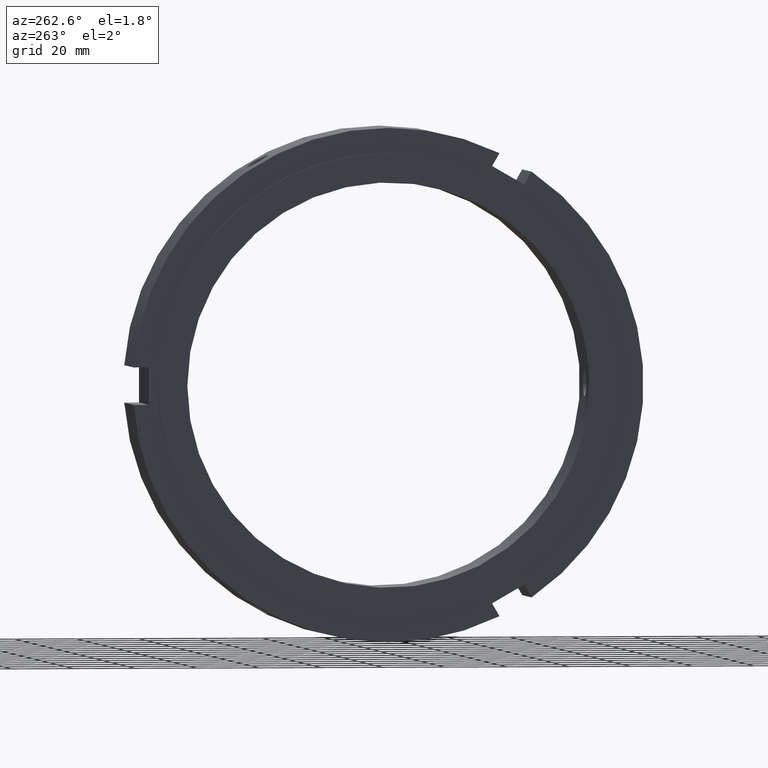
[diagram: clean part render]
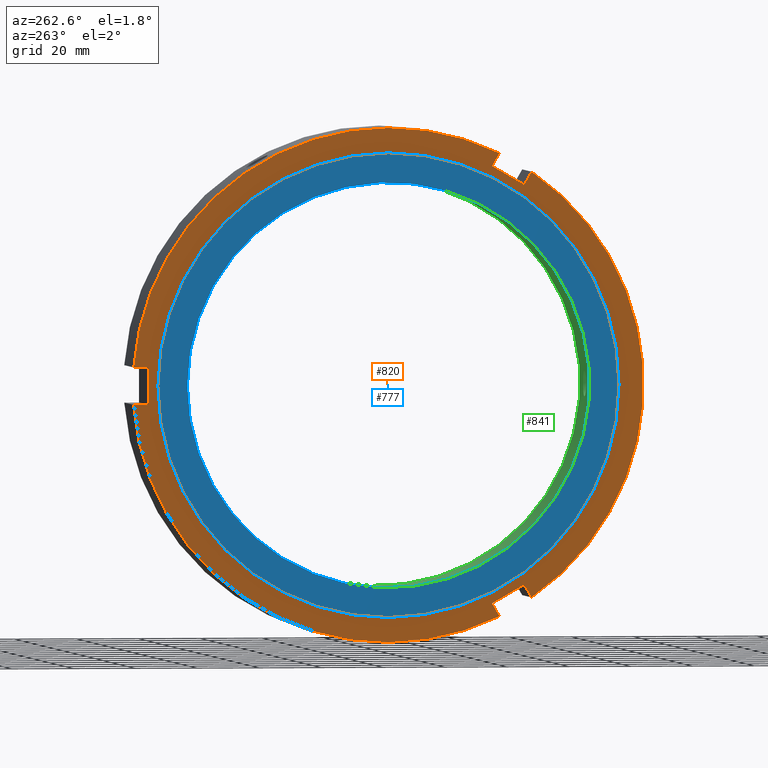
[diagram: same view with three faces highlighted in distinct colors, each labeled with its STEP entity id]
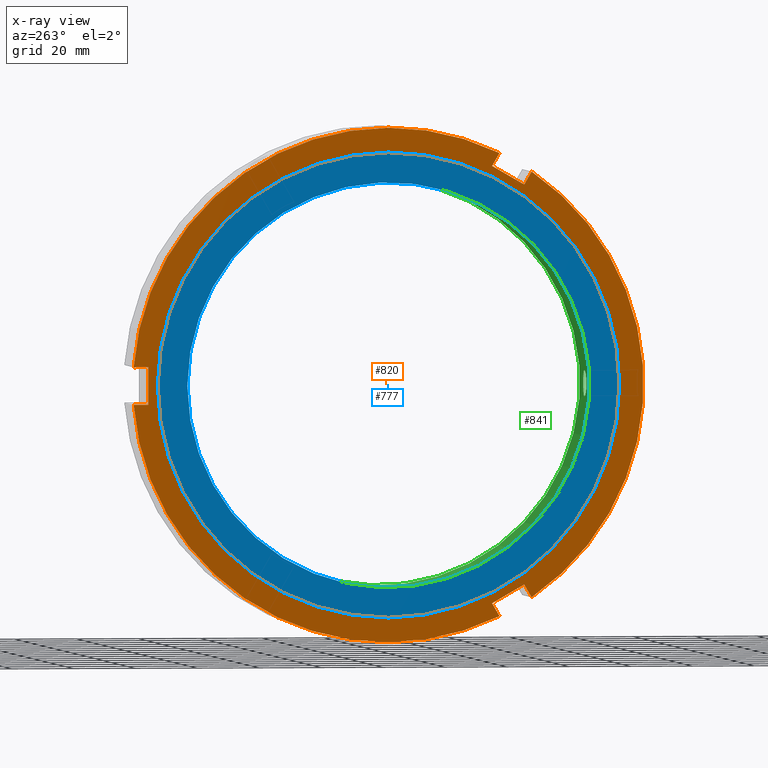
[diagram: x-ray of the same camera — body ghosted, the three highlighted faces saturated]
A machine part, auxiliary view with three faces highlighted in distinct colors.
The next image is the same camera in x-ray (body ghosted, the three faces saturated) — at least one of them is partly hidden behind the body in this view.
Their STEP definitions:

[orange] entity #820 — the highlighted planar face has unit normal (-1, 0, 0).
#73=CARTESIAN_POINT('',(0.499999999999976,-43.946152422706668,-64.116968793293978));
#74=VERTEX_POINT('',#73);
#75=CARTESIAN_POINT('',(0.499999999999976,-46.336916878414101,-68.257894299509005));
#76=VERTEX_POINT('',#75);
#77=CARTESIAN_POINT('',(0.499999999999976,-43.946152422706668,-64.116968793293992));
#78=DIRECTION('',(0.0,-0.500000000000002,-0.866025403784437));
#79=VECTOR('',#78,4.781528911414873);
#80=LINE('',#77,#79);
#81=EDGE_CURVE('',#74,#76,#80,.T.);
#113=CARTESIAN_POINT('',(0.499999999999976,-35.944612033000844,-74.257894299508990));
#114=VERTEX_POINT('',#113);
#115=CARTESIAN_POINT('',(0.499999999999976,-33.553847577293411,-70.116968793293992));
#116=VERTEX_POINT('',#115);
#117=CARTESIAN_POINT('',(0.499999999999976,-35.944612033000851,-74.257894299509019));
#118=DIRECTION('',(0.0,0.500000000000000,0.866025403784438));
#119=VECTOR('',#118,4.781528911414850);
#120=LINE('',#117,#119);
#121=EDGE_CURVE('',#114,#116,#120,.T.);
#153=CARTESIAN_POINT('',(0.499999999999976,-33.553847577293432,-70.116968793294006));
#154=DIRECTION('',(0.0,-0.866025403784439,0.500000000000000));
#155=VECTOR('',#154,12.0);
#156=LINE('',#153,#155);
#157=EDGE_CURVE('',#116,#74,#156,.T.);
#263=CARTESIAN_POINT('',(0.499999999999976,-33.553847577293354,70.116968793294006));
#264=VERTEX_POINT('',#263);
#265=CARTESIAN_POINT('',(0.499999999999976,-35.944612033000780,74.257894299509019));
#266=VERTEX_POINT('',#265);
#267=CARTESIAN_POINT('',(0.499999999999980,-33.553847577293361,70.116968793294021));
#268=DIRECTION('',(0.0,-0.500000000000000,0.866025403784438));
#269=VECTOR('',#268,4.781528911414850);
#270=LINE('',#267,#269);
#271=EDGE_CURVE('',#264,#266,#270,.T.);
#303=CARTESIAN_POINT('',(0.499999999999976,-46.336916878414044,68.257894299509033));
#304=VERTEX_POINT('',#303);
#305=CARTESIAN_POINT('',(0.499999999999976,-43.946152422706618,64.116968793294006));
#306=VERTEX_POINT('',#305);
#307=CARTESIAN_POINT('',(0.499999999999980,-46.336916878414051,68.257894299509033));
#308=DIRECTION('',(0.0,0.499999999999999,-0.866025403784439));
#309=VECTOR('',#308,4.781528911414847);
#310=LINE('',#307,#309);
#311=EDGE_CURVE('',#304,#306,#310,.T.);
#343=CARTESIAN_POINT('',(0.499999999999980,-43.946152422706632,64.116968793294006));
#344=DIRECTION('',(0.0,0.866025403784439,0.500000000000000));
#345=VECTOR('',#344,12.000000000000007);
#346=LINE('',#343,#345);
#347=EDGE_CURVE('',#306,#264,#346,.T.);
#527=CARTESIAN_POINT('',(0.499999999999976,82.281528911414853,5.999999999999996));
#528=VERTEX_POINT('',#527);
#535=CARTESIAN_POINT('',(0.499999999999976,0.0,0.0));
#536=DIRECTION('',(1.0,0.0,0.0));
#537=DIRECTION('',(0.0,1.0,0.0));
#538=AXIS2_PLACEMENT_3D('',#535,#536,#537);
#539=CIRCLE('',#538,82.500000000000000);
#540=EDGE_CURVE('',#528,#266,#539,.T.);
#554=CARTESIAN_POINT('',(0.499999999999976,82.281528911414853,-5.999999999999996));
#555=VERTEX_POINT('',#554);
#556=CARTESIAN_POINT('',(0.499999999999976,0.0,0.0));
#557=DIRECTION('',(1.0,0.0,0.0));
#558=DIRECTION('',(0.0,1.0,0.0));
#559=AXIS2_PLACEMENT_3D('',#556,#557,#558);
#560=CIRCLE('',#559,82.500000000000000);
#561=EDGE_CURVE('',#114,#555,#560,.T.);
#584=CARTESIAN_POINT('',(0.499999999999976,0.0,0.0));
#585=DIRECTION('',(1.0,0.0,0.0));
#586=DIRECTION('',(0.0,1.0,0.0));
#587=AXIS2_PLACEMENT_3D('',#584,#585,#586);
#588=CIRCLE('',#587,82.500000000000000);
#589=EDGE_CURVE('',#304,#76,#588,.T.);
#690=CARTESIAN_POINT('',(0.499999999999976,77.500000000000000,-5.999999999999996));
#691=VERTEX_POINT('',#690);
#692=CARTESIAN_POINT('',(0.499999999999978,77.500000000000000,-5.999999999999996));
#693=DIRECTION('',(0.0,1.0,0.0));
#694=VECTOR('',#693,4.781528911414853);
#695=LINE('',#692,#694);
#696=EDGE_CURVE('',#691,#555,#695,.T.);
#714=CARTESIAN_POINT('',(0.499999999999976,77.500000000000000,5.999999999999996));
#715=VERTEX_POINT('',#714);
#716=CARTESIAN_POINT('',(0.499999999999978,82.281528911414853,5.999999999999996));
#717=DIRECTION('',(0.0,-1.0,0.0));
#718=VECTOR('',#717,4.781528911414853);
#719=LINE('',#716,#718);
#720=EDGE_CURVE('',#528,#715,#719,.T.);
#738=CARTESIAN_POINT('',(0.499999999999978,77.500000000000000,5.999999999999996));
#739=DIRECTION('',(0.0,0.0,-1.0));
#740=VECTOR('',#739,11.999999999999993);
#741=LINE('',#738,#740);
#742=EDGE_CURVE('',#715,#691,#741,.T.);
#783=CARTESIAN_POINT('',(0.499999999999978,74.500000000000000,0.0));
#784=VERTEX_POINT('',#783);
#785=CARTESIAN_POINT('',(0.499999999999978,0.0,0.0));
#786=DIRECTION('',(1.0,0.0,0.0));
#787=DIRECTION('',(0.0,1.0,0.0));
#788=AXIS2_PLACEMENT_3D('',#785,#786,#787);
#789=CIRCLE('',#788,74.500000000000000);
#790=EDGE_CURVE('',#784,#784,#789,.T.);
#798=CARTESIAN_POINT('',(0.499999999999977,78.500000000000000,0.0));
#799=DIRECTION('',(-1.0,0.0,0.0));
#800=DIRECTION('',(0.0,0.0,1.0));
#801=AXIS2_PLACEMENT_3D('',#798,#799,#800);
#802=PLANE('',#801);
#803=ORIENTED_EDGE('',*,*,#81,.T.);
#804=ORIENTED_EDGE('',*,*,#589,.F.);
#805=ORIENTED_EDGE('',*,*,#311,.T.);
#806=ORIENTED_EDGE('',*,*,#347,.T.);
#807=ORIENTED_EDGE('',*,*,#271,.T.);
#808=ORIENTED_EDGE('',*,*,#540,.F.);
#809=ORIENTED_EDGE('',*,*,#720,.T.);
#810=ORIENTED_EDGE('',*,*,#742,.T.);
#811=ORIENTED_EDGE('',*,*,#696,.T.);
#812=ORIENTED_EDGE('',*,*,#561,.F.);
#813=ORIENTED_EDGE('',*,*,#121,.T.);
#814=ORIENTED_EDGE('',*,*,#157,.T.);
#815=EDGE_LOOP('',(#803,#804,#805,#806,#807,#808,#809,#810,#811,#812,#813,#814));
#816=FACE_OUTER_BOUND('',#815,.T.);
#817=ORIENTED_EDGE('',*,*,#790,.T.);
#818=EDGE_LOOP('',(#817));
#819=FACE_BOUND('',#818,.T.);
#820=ADVANCED_FACE('',(#816,#819),#802,.T.);

[blue] entity #777 — the highlighted planar face has unit normal (-1, 0, 0).
#750=CARTESIAN_POINT('',(-2.060535E-014,69.750000000000000,0.0));
#751=DIRECTION('',(-1.0,0.0,0.0));
#752=DIRECTION('',(0.0,0.0,1.0));
#753=AXIS2_PLACEMENT_3D('',#750,#751,#752);
#754=PLANE('',#753);
#755=CARTESIAN_POINT('',(-2.220446E-014,74.500000000000000,0.0));
#756=VERTEX_POINT('',#755);
#757=CARTESIAN_POINT('',(-2.220446E-014,0.0,0.0));
#758=DIRECTION('',(1.0,0.0,0.0));
#759=DIRECTION('',(0.0,1.0,0.0));
#760=AXIS2_PLACEMENT_3D('',#757,#758,#759);
#761=CIRCLE('',#760,74.500000000000000);
#762=EDGE_CURVE('',#756,#756,#761,.T.);
#763=ORIENTED_EDGE('',*,*,#762,.F.);
#764=EDGE_LOOP('',(#763));
#765=FACE_OUTER_BOUND('',#764,.T.);
#766=CARTESIAN_POINT('',(-1.900623E-014,65.0,0.0));
#767=VERTEX_POINT('',#766);
#768=CARTESIAN_POINT('',(-1.900823E-014,0.0,0.0));
#769=DIRECTION('',(1.0,0.0,0.0));
#770=DIRECTION('',(0.0,1.0,0.0));
#771=AXIS2_PLACEMENT_3D('',#768,#769,#770);
#772=CIRCLE('',#771,65.0);
#773=EDGE_CURVE('',#767,#767,#772,.T.);
#774=ORIENTED_EDGE('',*,*,#773,.T.);
#775=EDGE_LOOP('',(#774));
#776=FACE_BOUND('',#775,.T.);
#777=ADVANCED_FACE('',(#765,#776),#754,.T.);

[green] entity #841 — the highlighted cylindrical surface (bore or boss wall) has radius 65 mm, axis along (1, 0, 0).
#216=CARTESIAN_POINT('',(11.999999999999984,36.059385218909412,54.080687288849219));
#217=VERTEX_POINT('',#216);
#218=CARTESIAN_POINT('',(11.999999999999986,36.059385218909398,54.080687288849234));
#219=CARTESIAN_POINT('',(11.473988907387904,36.059385218909398,54.080687288849234));
#220=CARTESIAN_POINT('',(10.913016296673286,35.971848282437129,54.139375422463999));
#221=CARTESIAN_POINT('',(9.881222806530774,35.614413618888193,54.375172482390006));
#222=CARTESIAN_POINT('',(9.410389551678808,35.344338833655357,54.551958718026079));
#223=CARTESIAN_POINT('',(8.666884265975028,34.717398813313665,54.953077320903560));
#224=CARTESIAN_POINT('',(8.344599357334994,34.318668972562861,55.204123682125328));
#225=CARTESIAN_POINT('',(7.917153195129436,33.437835057425183,55.742062199292945));
#226=CARTESIAN_POINT('',(7.811999999999985,32.955538703123054,56.028645853114099));
#227=CARTESIAN_POINT('',(7.811999999999983,32.044461296876968,56.554656638862880));
#228=CARTESIAN_POINT('',(7.917153195129431,31.555124395207386,56.829045706930557));
#229=CARTESIAN_POINT('',(8.344599357334989,30.648839016097259,57.322900995370894));
#230=CARTESIAN_POINT('',(8.666884265975025,30.232061569376182,57.542687986097135));
#231=CARTESIAN_POINT('',(9.410389551678804,29.571212659182908,57.885074668923423));
#232=CARTESIAN_POINT('',(9.881222806530767,29.283073895466238,58.030573176038658));
#233=CARTESIAN_POINT('',(10.913016296673280,28.900150319658160,58.222222144902176));
#234=CARTESIAN_POINT('',(11.473988907387902,28.805556436810946,58.268687288849222));
#235=CARTESIAN_POINT('',(12.526011092612066,28.805556436810946,58.268687288849222));
#236=CARTESIAN_POINT('',(13.086983703326688,28.900150319658160,58.222222144902176));
#237=CARTESIAN_POINT('',(14.118777193469201,29.283073895466238,58.030573176038658));
#238=CARTESIAN_POINT('',(14.589610448321164,29.571212659182908,57.885074668923423));
#239=CARTESIAN_POINT('',(15.333115734024943,30.232061569376182,57.542687986097135));
#240=CARTESIAN_POINT('',(15.655400642664976,30.648839016097263,57.322900995370887));
#241=CARTESIAN_POINT('',(16.082846804870538,31.555124395207397,56.829045706930543));
#242=CARTESIAN_POINT('',(16.187999999999985,32.044461296876968,56.554656638862880));
#243=CARTESIAN_POINT('',(16.187999999999985,32.955538703123054,56.028645853114099));
#244=CARTESIAN_POINT('',(16.082846804870535,33.437835057425190,55.742062199292945));
#245=CARTESIAN_POINT('',(15.655400642664972,34.318668972562875,55.204123682125328));
#246=CARTESIAN_POINT('',(15.333115734024940,34.717398813313672,54.953077320903560));
#247=CARTESIAN_POINT('',(14.589610448321162,35.344338833655357,54.551958718026071));
#248=CARTESIAN_POINT('',(14.118777193469196,35.614413618888193,54.375172482390013));
#249=CARTESIAN_POINT('',(13.086983703326682,35.971848282437129,54.139375422464006));
#250=CARTESIAN_POINT('',(12.526011092612068,36.059385218909398,54.080687288849234));
#251=CARTESIAN_POINT('',(11.999999999999986,36.059385218909398,54.080687288849234));
#252=B_SPLINE_CURVE_WITH_KNOTS('',3,(#218,#219,#220,#221,#222,#223,#224,#225,#226,#227,#228,#229,#230,#231,#232,#233,#234,#235,#236,#237,#238,#239,#240,#241,#242,#243,#244,#245,#246,#247,#248,#249,#250,#251),.UNSPECIFIED.,.T.,.U.,(4,2,2,2,2,2,2,2,2,2,2,2,2,2,2,2,4),(0.0,0.157803327783624,0.315606655567249,0.473409891291878,0.631213127016507,0.789016362741137,0.946819598465767,1.104622926249391,1.262426254033016,1.420229581816640,1.578032909600265,1.735836145324894,1.893639381049524,2.051442616774153,2.209245852498782,2.367049180282407,2.524852508066031),.UNSPECIFIED.);
#253=EDGE_CURVE('',#217,#217,#252,.T.);
#406=CARTESIAN_POINT('',(11.999999999999984,28.805556436810917,-58.268687288849243));
#407=VERTEX_POINT('',#406);
#408=CARTESIAN_POINT('',(11.999999999999984,28.805556436810917,-58.268687288849236));
#409=CARTESIAN_POINT('',(11.473988907387902,28.805556436810917,-58.268687288849236));
#410=CARTESIAN_POINT('',(10.913016296673279,28.900150319658135,-58.222222144902183));
#411=CARTESIAN_POINT('',(9.881222806530763,29.283073895466213,-58.030573176038665));
#412=CARTESIAN_POINT('',(9.410389551678806,29.571212659182898,-57.885074668923409));
#413=CARTESIAN_POINT('',(8.666884265975032,30.232061569376167,-57.542687986097114));
#414=CARTESIAN_POINT('',(8.344599357334984,30.648839016097259,-57.322900995370894));
#415=CARTESIAN_POINT('',(7.917153195129431,31.555124395207379,-56.829045706930572));
#416=CARTESIAN_POINT('',(7.811999999999983,32.044461296876946,-56.554656638862895));
#417=CARTESIAN_POINT('',(7.811999999999983,32.955538703123032,-56.028645853114121));
#418=CARTESIAN_POINT('',(7.917153195129431,33.437835057425161,-55.742062199292953));
#419=CARTESIAN_POINT('',(8.344599357334989,34.318668972562847,-55.204123682125342));
#420=CARTESIAN_POINT('',(8.666884265975028,34.717398813313643,-54.953077320903589));
#421=CARTESIAN_POINT('',(9.410389551678804,35.344338833655335,-54.551958718026100));
#422=CARTESIAN_POINT('',(9.881222806530767,35.614413618888179,-54.375172482390035));
#423=CARTESIAN_POINT('',(10.913016296673280,35.971848282437115,-54.139375422464020));
#424=CARTESIAN_POINT('',(11.473988907387902,36.059385218909355,-54.080687288849241));
#425=CARTESIAN_POINT('',(12.526011092612066,36.059385218909355,-54.080687288849241));
#426=CARTESIAN_POINT('',(13.086983703326688,35.971848282437115,-54.139375422464020));
#427=CARTESIAN_POINT('',(14.118777193469201,35.614413618888179,-54.375172482390035));
#428=CARTESIAN_POINT('',(14.589610448321162,35.344338833655335,-54.551958718026100));
#429=CARTESIAN_POINT('',(15.333115734024940,34.717398813313643,-54.953077320903589));
#430=CARTESIAN_POINT('',(15.655400642664979,34.318668972562847,-55.204123682125342));
#431=CARTESIAN_POINT('',(16.082846804870538,33.437835057425161,-55.742062199292953));
#432=CARTESIAN_POINT('',(16.187999999999985,32.955538703123032,-56.028645853114121));
#433=CARTESIAN_POINT('',(16.187999999999985,32.044461296876946,-56.554656638862895));
#434=CARTESIAN_POINT('',(16.082846804870538,31.555124395207375,-56.829045706930572));
#435=CARTESIAN_POINT('',(15.655400642664981,30.648839016097252,-57.322900995370901));
#436=CARTESIAN_POINT('',(15.333115734024938,30.232061569376157,-57.542687986097135));
#437=CARTESIAN_POINT('',(14.589610448321162,29.571212659182891,-57.885074668923423));
#438=CARTESIAN_POINT('',(14.118777193469201,29.283073895466210,-58.030573176038665));
#439=CARTESIAN_POINT('',(13.086983703326684,28.900150319658131,-58.222222144902183));
#440=CARTESIAN_POINT('',(12.526011092612066,28.805556436810917,-58.268687288849243));
#441=CARTESIAN_POINT('',(11.999999999999984,28.805556436810917,-58.268687288849243));
#442=B_SPLINE_CURVE_WITH_KNOTS('',3,(#408,#409,#410,#411,#412,#413,#414,#415,#416,#417,#418,#419,#420,#421,#422,#423,#424,#425,#426,#427,#428,#429,#430,#431,#432,#433,#434,#435,#436,#437,#438,#439,#440,#441),.UNSPECIFIED.,.T.,.U.,(4,2,2,2,2,2,2,2,2,2,2,2,2,2,2,2,4),(0.0,0.157803327783625,0.315606655567250,0.473409891291878,0.631213127016507,0.789016362741136,0.946819598465765,1.104622926249389,1.262426254033014,1.420229581816638,1.578032909600263,1.735836145324892,1.893639381049521,2.051442616774150,2.209245852498779,2.367049180282404,2.524852508066029),.UNSPECIFIED.);
#443=EDGE_CURVE('',#407,#407,#442,.T.);
#508=CARTESIAN_POINT('',(23.999999999999986,65.0,0.0));
#509=VERTEX_POINT('',#508);
#510=CARTESIAN_POINT('',(23.999999999999986,0.0,0.0));
#511=DIRECTION('',(1.0,0.0,0.0));
#512=DIRECTION('',(0.0,1.0,0.0));
#513=AXIS2_PLACEMENT_3D('',#510,#511,#512);
#514=CIRCLE('',#513,65.0);
#515=EDGE_CURVE('',#509,#509,#514,.T.);
#643=CARTESIAN_POINT('',(11.999999999999984,-64.864941655720315,4.188000000000000));
#644=VERTEX_POINT('',#643);
#645=CARTESIAN_POINT('',(11.999999999999984,-64.864941655720315,4.188000000000000));
#646=CARTESIAN_POINT('',(11.473988907387902,-64.864941655720315,4.188000000000000));
#647=CARTESIAN_POINT('',(10.913016296673280,-64.871998602095275,4.082846722438171));
#648=CARTESIAN_POINT('',(9.881222806530769,-64.897487514354410,3.655400693648643));
#649=CARTESIAN_POINT('',(9.410389551678806,-64.915551492838247,3.333115950897345));
#650=CARTESIAN_POINT('',(8.666884265975028,-64.949460382689836,2.589610665193566));
#651=CARTESIAN_POINT('',(8.344599357334992,-64.967507988660117,2.118777313245564));
#652=CARTESIAN_POINT('',(7.917153195129432,-64.992959452632547,1.086983507637615));
#653=CARTESIAN_POINT('',(7.811999999999983,-65.0,0.526010785748765));
#654=CARTESIAN_POINT('',(7.811999999999983,-65.0,-0.526010785748765));
#655=CARTESIAN_POINT('',(7.917153195129430,-64.992959452632547,-1.086983507637616));
#656=CARTESIAN_POINT('',(8.344599357334989,-64.967507988660117,-2.118777313245564));
#657=CARTESIAN_POINT('',(8.666884265975028,-64.949460382689836,-2.589610665193566));
#658=CARTESIAN_POINT('',(9.410389551678808,-64.915551492838262,-3.333115950897345));
#659=CARTESIAN_POINT('',(9.881222806530769,-64.897487514354410,-3.655400693648645));
#660=CARTESIAN_POINT('',(10.913016296673280,-64.871998602095275,-4.082846722438172));
#661=CARTESIAN_POINT('',(11.473988907387902,-64.864941655720315,-4.188000000000000));
#662=CARTESIAN_POINT('',(12.526011092612066,-64.864941655720315,-4.188000000000000));
#663=CARTESIAN_POINT('',(13.086983703326688,-64.871998602095275,-4.082846722438171));
#664=CARTESIAN_POINT('',(14.118777193469199,-64.897487514354410,-3.655400693648642));
#665=CARTESIAN_POINT('',(14.589610448321162,-64.915551492838247,-3.333115950897346));
#666=CARTESIAN_POINT('',(15.333115734024943,-64.949460382689836,-2.589610665193566));
#667=CARTESIAN_POINT('',(15.655400642664979,-64.967507988660117,-2.118777313245564));
#668=CARTESIAN_POINT('',(16.082846804870538,-64.992959452632547,-1.086983507637615));
#669=CARTESIAN_POINT('',(16.187999999999985,-65.0,-0.526010785748765));
#670=CARTESIAN_POINT('',(16.187999999999985,-65.0,0.526010785748765));
#671=CARTESIAN_POINT('',(16.082846804870542,-64.992959452632547,1.086983507637615));
#672=CARTESIAN_POINT('',(15.655400642664979,-64.967507988660117,2.118777313245564));
#673=CARTESIAN_POINT('',(15.333115734024943,-64.949460382689836,2.589610665193566));
#674=CARTESIAN_POINT('',(14.589610448321162,-64.915551492838247,3.333115950897345));
#675=CARTESIAN_POINT('',(14.118777193469199,-64.897487514354410,3.655400693648642));
#676=CARTESIAN_POINT('',(13.086983703326688,-64.871998602095275,4.082846722438171));
#677=CARTESIAN_POINT('',(12.526011092612066,-64.864941655720315,4.188000000000000));
#678=CARTESIAN_POINT('',(11.999999999999984,-64.864941655720315,4.188000000000000));
#679=B_SPLINE_CURVE_WITH_KNOTS('',3,(#645,#646,#647,#648,#649,#650,#651,#652,#653,#654,#655,#656,#657,#658,#659,#660,#661,#662,#663,#664,#665,#666,#667,#668,#669,#670,#671,#672,#673,#674,#675,#676,#677,#678),.UNSPECIFIED.,.T.,.U.,(4,2,2,2,2,2,2,2,2,2,2,2,2,2,2,2,4),(0.0,0.157803327783625,0.315606655567249,0.473409891291879,0.631213127016508,0.789016362741138,0.946819598465767,1.104622926249392,1.262426254033016,1.420229581816641,1.578032909600265,1.735836145324895,1.893639381049525,2.051442616774154,2.209245852498784,2.367049180282408,2.524852508066033),.UNSPECIFIED.);
#680=EDGE_CURVE('',#644,#644,#679,.T.);
#766=CARTESIAN_POINT('',(-1.900623E-014,65.0,0.0));
#767=VERTEX_POINT('',#766);
#768=CARTESIAN_POINT('',(-1.900823E-014,0.0,0.0));
#769=DIRECTION('',(1.0,0.0,0.0));
#770=DIRECTION('',(0.0,1.0,0.0));
#771=AXIS2_PLACEMENT_3D('',#768,#769,#770);
#772=CIRCLE('',#771,65.0);
#773=EDGE_CURVE('',#767,#767,#772,.T.);
#821=CARTESIAN_POINT('',(11.999999999999984,0.0,0.0));
#822=DIRECTION('',(1.0,0.0,0.0));
#823=DIRECTION('',(0.0,1.0,0.0));
#824=AXIS2_PLACEMENT_3D('',#821,#822,#823);
#825=CYLINDRICAL_SURFACE('',#824,65.0);
#826=ORIENTED_EDGE('',*,*,#773,.F.);
#827=EDGE_LOOP('',(#826));
#828=FACE_OUTER_BOUND('',#827,.T.);
#829=ORIENTED_EDGE('',*,*,#253,.T.);
#830=EDGE_LOOP('',(#829));
#831=FACE_BOUND('',#830,.T.);
#832=ORIENTED_EDGE('',*,*,#443,.T.);
#833=EDGE_LOOP('',(#832));
#834=FACE_BOUND('',#833,.T.);
#835=ORIENTED_EDGE('',*,*,#680,.T.);
#836=EDGE_LOOP('',(#835));
#837=FACE_BOUND('',#836,.T.);
#838=ORIENTED_EDGE('',*,*,#515,.T.);
#839=EDGE_LOOP('',(#838));
#840=FACE_BOUND('',#839,.T.);
#841=ADVANCED_FACE('',(#828,#831,#834,#837,#840),#825,.F.);